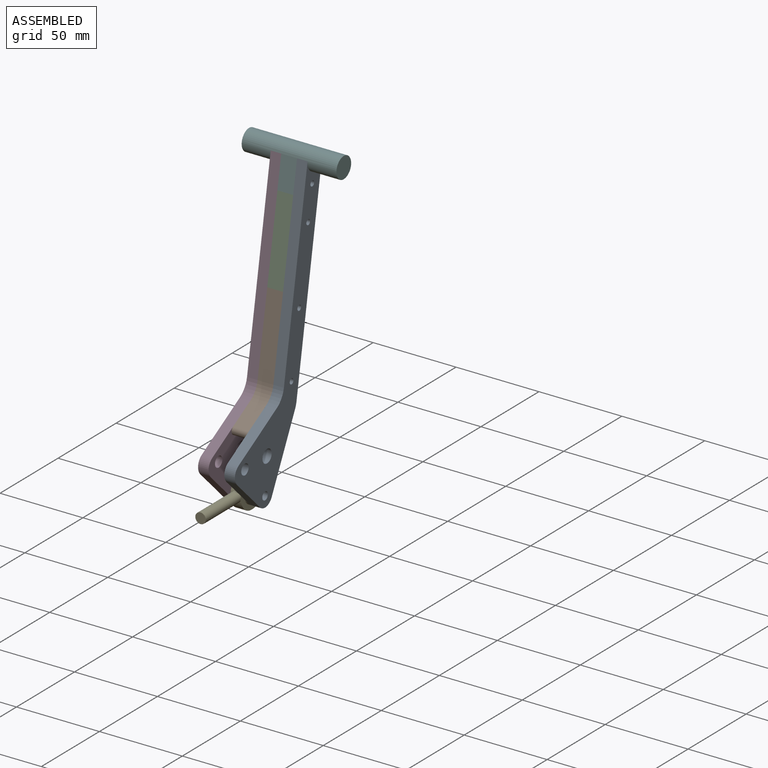
[diagram: assembled view]
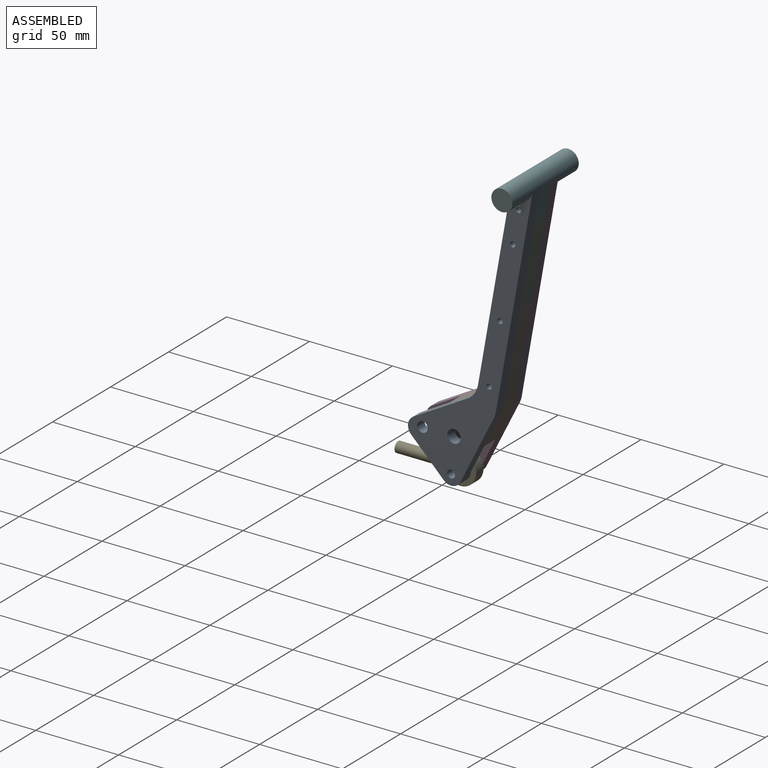
[diagram: assembled view, second angle]
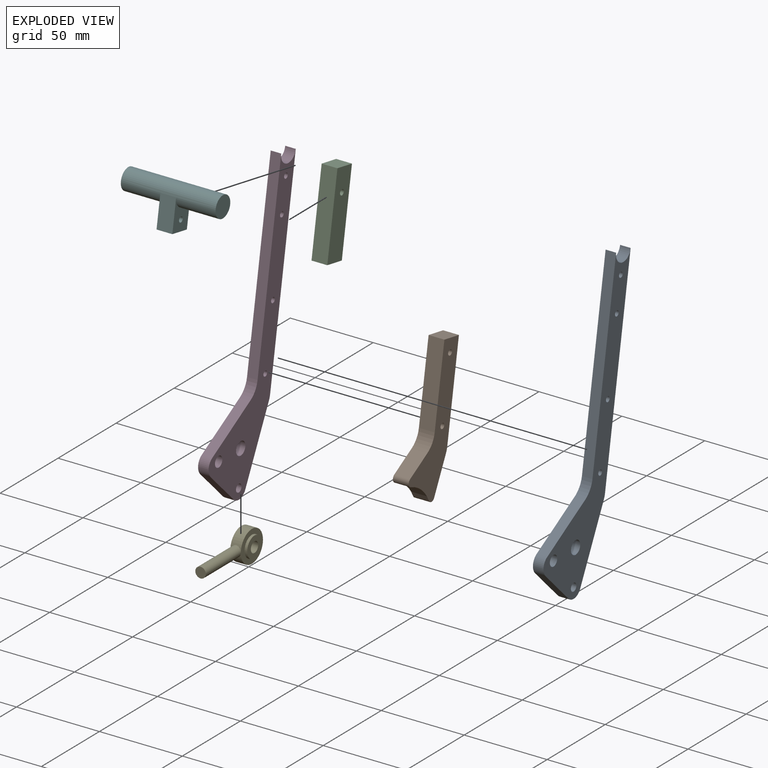
[diagram: exploded view]
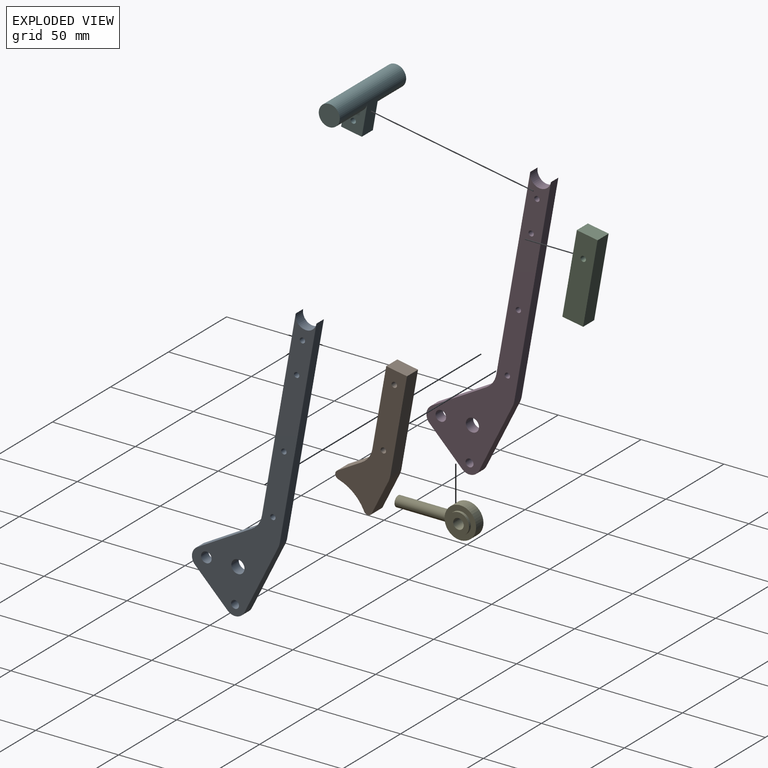
[diagram: exploded view, second angle]
ASSEMBLY  parts=6 mates=5
PART A: 19 faces, bbox 6.4x75.1x174.7 mm
  f0: cylinder r=3.17mm len=6.35mm, axis (-1,0,0), area 126.7mm2, adj f16,f18
  f1: cylinder r=2.38mm len=6.35mm, axis (-1,0,0), area 95mm2, adj f16,f18
  f2: plane 32.79x18.74mm, normal (0,-0.5,0.87), area 239.8mm2, adj f3,f10,f16,f18
  f3: cylinder r=12.7mm len=8.82mm, axis (-1,0,0), area 70.7mm2, adj f2,f4,f16,f18
  f4: plane 115.68x20.4mm, normal (0,-0.98,0.17), area 745.9mm2, adj f3,f11,f16,f18
  f5: plane 125.11x22.06mm, normal (0,0.98,-0.17), area 806.7mm2, adj f6,f11,f16,f18
  f6: cylinder r=12.7mm len=6.35mm, axis (-1,0,0), area 23.3mm2, adj f5,f7,f16,f18
  f7: plane 40.45x20.22mm, normal (0,0.89,-0.45), area 287.2mm2, adj f6,f8,f16,f18
  f8: cylinder r=6.35mm len=10.17mm, axis (-1,0,0), area 76.3mm2, adj f7,f9,f16,f18
  f9: plane 19.64x19.64mm, normal (0,-0.71,-0.71), area 176.4mm2, adj f8,f10,f16,f18
  f10: cylinder r=6.35mm len=10mm, axis (-1,0,0), area 74.1mm2, adj f2,f9,f16,f18
  f11: cylinder r=6.35mm len=12.6mm, axis (-1,0,0), area 126.7mm2, adj f4,f5,f16,f18
  f12: cylinder r=1.59mm len=6.35mm, axis (-1,0,0), area 63.3mm2, adj f16,f18
  f13: cylinder r=1.59mm len=6.35mm, axis (-1,0,0), area 63.3mm2, adj f16,f18
  f14: cylinder r=1.59mm len=6.35mm, axis (-1,0,0), area 63.3mm2, adj f16,f18
  f15: cylinder r=1.59mm len=6.35mm, axis (-1,0,0), area 63.3mm2, adj f16,f18
  f16: plane 174.75x75.1mm, normal (1,0,0), area 2890.2mm2, adj f0,f1,f2,f3,f4,f5,f6,f7
  f17: cylinder r=3.97mm len=7.94mm, axis (-1,0,0), area 158.3mm2, adj f16,f18
  f18: plane 174.75x75.1mm, normal (-1,0,0), area 2890.2mm2, adj f0,f1,f2,f3,f4,f5,f6,f7
PART B: 14 faces, bbox 9.5x43.3x84.2 mm
  f0: plane 47.41x9.53mm, normal (0,-0.98,0.17), area 458.6mm2, adj f2,f3,f4,f13
  f1: plane 56.84x10.02mm, normal (0,0.98,-0.17), area 549.8mm2, adj f2,f3,f7,f13
  f2: plane 84.16x43.27mm, normal (1,0,0), area 1230.2mm2, adj f0,f1,f4,f5,f6,f7,f8,f9
  f3: plane 84.16x43.27mm, normal (-1,0,0), area 1230.2mm2, adj f0,f1,f4,f5,f6,f7,f8,f9
  f4: cylinder r=12.7mm len=9.53mm, axis (-1,0,0), area 106.1mm2, adj f0,f2,f3,f5
  f5: plane 14.91x9.53mm, normal (0,-0.5,0.87), area 163.6mm2, adj f2,f3,f4,f11
  f6: plane 20.24x10.12mm, normal (0,0.89,-0.45), area 215.5mm2, adj f2,f3,f7,f12
  f7: cylinder r=12.7mm len=9.53mm, axis (-1,0,0), area 35mm2, adj f1,f2,f3,f6
  f8: cylinder r=1.63mm len=9.53mm, axis (-1,0,0), area 97.3mm2, adj f2,f3
  f9: cylinder r=1.63mm len=9.53mm, axis (-1,0,0), area 97.3mm2, adj f2,f3
  f10: cylinder r=24.91mm len=15.58mm, axis (1,0,0), area 201.1mm2, adj f2,f3,f11,f12
  f11: cylinder r=2.54mm len=9.53mm, axis (1,0,0), area 56.6mm2, adj f2,f3,f5,f10
  f12: cylinder r=2.54mm len=9.53mm, axis (1,0,0), area 54.1mm2, adj f2,f3,f6,f10
  f13: plane 12.51x9.53mm, normal (0,0.17,0.98), area 121mm2, adj f0,f1,f2,f3
PART C: 7 faces, bbox 9.5x21.2x51.7 mm
  f0: plane 12.51x9.53mm, normal (0,0.17,0.98), area 121mm2, adj f2,f3,f4,f5
  f1: cylinder r=1.63mm len=9.53mm, axis (-1,0,0), area 97.3mm2, adj f2,f3
  f2: plane 51.71x21.24mm, normal (1,0,0), area 630.1mm2, adj f0,f1,f4,f5,f6
  f3: plane 51.71x21.24mm, normal (-1,0,0), area 630.1mm2, adj f0,f1,f4,f5,f6
  f4: plane 49.51x9.53mm, normal (0,0.98,-0.17), area 478.8mm2, adj f0,f2,f3,f6
  f5: plane 49.51x9.53mm, normal (0,-0.98,0.17), area 478.8mm2, adj f0,f2,f3,f6
  f6: plane 12.51x9.53mm, normal (0,-0.17,-0.98), area 121mm2, adj f2,f3,f4,f5
PART D: 19 faces, bbox 6.4x75.1x174.7 mm
  f0: plane 19.64x19.64mm, normal (0,-0.71,-0.71), area 176.4mm2, adj f7,f8,f17,f18
  f1: plane 40.45x20.22mm, normal (0,0.89,-0.45), area 287.2mm2, adj f8,f9,f17,f18
  f2: plane 125.11x22.06mm, normal (0,0.98,-0.17), area 806.7mm2, adj f3,f9,f17,f18
  f3: cylinder r=6.35mm len=12.6mm, axis (-1,0,0), area 126.7mm2, adj f2,f4,f17,f18
  f4: plane 115.68x20.4mm, normal (0,-0.98,0.17), area 745.9mm2, adj f3,f5,f17,f18
  f5: cylinder r=12.7mm len=8.82mm, axis (-1,0,0), area 70.7mm2, adj f4,f6,f17,f18
  f6: plane 32.79x18.74mm, normal (0,-0.5,0.87), area 239.8mm2, adj f5,f7,f17,f18
  f7: cylinder r=6.35mm len=10mm, axis (-1,0,0), area 74.1mm2, adj f0,f6,f17,f18
  f8: cylinder r=6.35mm len=10.17mm, axis (-1,0,0), area 76.3mm2, adj f0,f1,f17,f18
  f9: cylinder r=12.7mm len=6.35mm, axis (-1,0,0), area 23.3mm2, adj f1,f2,f17,f18
  f10: cylinder r=3.17mm len=6.35mm, axis (-1,0,0), area 126.7mm2, adj f17,f18
  f11: cylinder r=2.38mm len=6.35mm, axis (-1,0,0), area 95mm2, adj f17,f18
  f12: cylinder r=1.59mm len=6.35mm, axis (-1,0,0), area 63.3mm2, adj f17,f18
  f13: cylinder r=1.59mm len=6.35mm, axis (-1,0,0), area 63.3mm2, adj f17,f18
  f14: cylinder r=1.59mm len=6.35mm, axis (-1,0,0), area 63.3mm2, adj f17,f18
  f15: cylinder r=1.59mm len=6.35mm, axis (-1,0,0), area 63.3mm2, adj f17,f18
  f16: cylinder r=3.97mm len=7.94mm, axis (-1,0,0), area 158.3mm2, adj f17,f18
  f17: plane 174.75x75.1mm, normal (-1,0,0), area 2890.2mm2, adj f0,f1,f2,f3,f4,f5,f6,f7
  f18: plane 174.75x75.1mm, normal (1,0,0), area 2890.2mm2, adj f0,f1,f2,f3,f4,f5,f6,f7
PART E: 10 faces, bbox 9.5x49.2x19.1 mm
  f0: cylinder r=9.53mm len=19.05mm, axis (-1,0,0), area 348mm2, adj f1,f2,f3
  f1: plane 19.05x19.05mm, normal (1,0,0), area 158.3mm2, adj f0,f7
  f2: plane 19.05x19.05mm, normal (-1,0,0), area 158.3mm2, adj f0,f5
  f3: cylinder r=3.17mm len=30.71mm, axis (0,1,0), area 607.1mm2, adj f0,f4
  f4: plane 6.35x6.35mm, normal (0,-1,0), area 31.7mm2, adj f3
  f5: cylinder r=6.35mm len=12.7mm, axis (-1,0,0), area 63.3mm2, adj f2,f9
  f6: cylinder r=3.17mm len=9.53mm, axis (-1,0,0), area 190mm2, adj f8,f9
  f7: cylinder r=6.35mm len=12.7mm, axis (-1,0,0), area 63.3mm2, adj f1,f8
  f8: plane 12.7x12.7mm, normal (1,0,0), area 95mm2, adj f6,f7
  f9: plane 12.7x12.7mm, normal (-1,0,0), area 95mm2, adj f5,f6
PART F: 9 faces, bbox 57.2x12.7x25.4 mm
  f0: cylinder r=6.35mm len=57.15mm, axis (-1,0,0), area 2090.2mm2, adj f1,f2,f3,f5,f6,f7
  f1: plane 12.7x12.7mm, normal (1,0,0), area 126.7mm2, adj f0
  f2: plane 12.7x12.7mm, normal (-1,0,0), area 126.7mm2, adj f0
  f3: plane 19.05x9.53mm, normal (0,-1,0), area 181.5mm2, adj f0,f4,f6,f7
  f4: plane 12.7x9.53mm, normal (0,0,-1), area 121mm2, adj f3,f5,f6,f7
  f5: plane 19.05x9.53mm, normal (0,1,0), area 181.5mm2, adj f0,f4,f6,f7
  f6: plane 19.05x12.7mm, normal (1,0,0), area 170.7mm2, adj f0,f3,f4,f5,f8
  f7: plane 19.05x12.7mm, normal (-1,0,0), area 170.7mm2, adj f0,f3,f4,f5,f8
  f8: cylinder r=1.59mm len=9.53mm, axis (1,0,0), area 95mm2, adj f6,f7
PLACE A at identity
PLACE B t=(0,25.43,81.19)mm
PLACE C t=(0,25.43,81.19)mm
PLACE D at identity
PLACE E t=(0,-1.74,-21.03)mm
PLACE F rot(axis=(-1,0,0),10deg) t=(0,41.12,146.26)mm
MATE fastened A.f13 <-> C.f1  axis (-1,0,0) through (4.76,35.43,113.99)mm
MATE fastened F.f3 <-> C.f5  axis (0,-0.98,0.17) through (0,31.56,128.61)mm
MATE fastened C.f1 <-> D.f13  axis (-1,0,0) through (-4.76,35.43,113.99)mm
MATE fastened B.f8 <-> D.f14  axis (-1,0,0) through (-4.76,27.71,70.22)mm
MATE revolute E.f6 <-> D.f8  axis (-1,0,0) through (-4.76,-1.74,-21.03)mm
